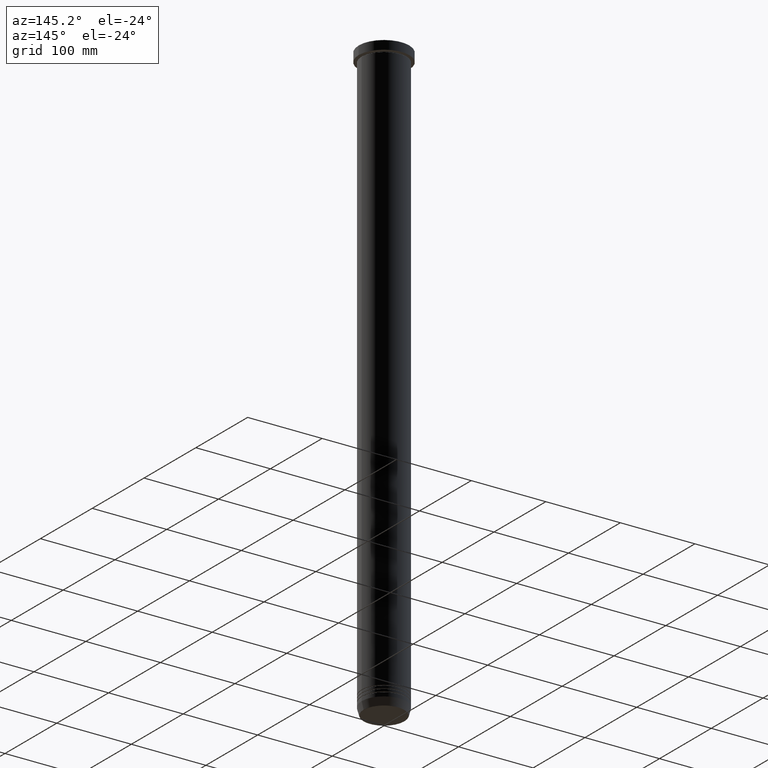
[diagram: clean part render]
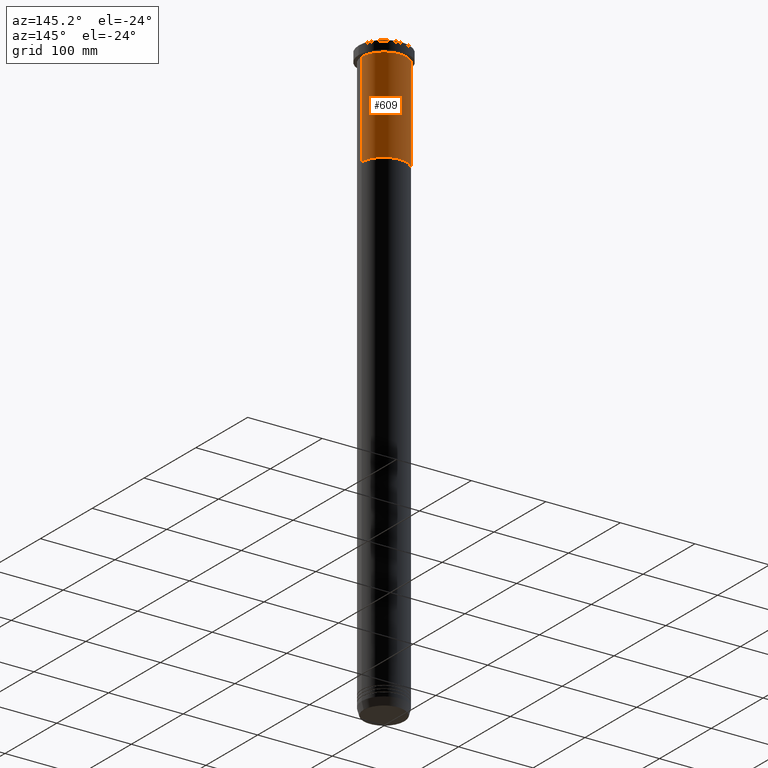
[diagram: same view with one face highlighted and labeled with its STEP entity id]
A machine part, auxiliary view. The second image highlights one B-rep face of the part: STEP entity #609.
In plain terms, the highlighted cylindrical surface (edge-blend (fillet) strip) has radius 30 mm, axis along (-0, -0, 1).
Its self-contained STEP definition (entity closure, byte-faithful):
#18 = EDGE_CURVE ( 'NONE', #29, #691, #153, .T. ) ;
#21 = ORIENTED_EDGE ( 'NONE', *, *, #616, .T. ) ;
#29 = VERTEX_POINT ( 'NONE', #182 ) ;
#30 = LINE ( 'NONE', #850, #189 ) ;
#35 = CARTESIAN_POINT ( 'NONE',  ( -30.00000000000000000, 3.673940397442059178E-15, 0.000000000000000000 ) ) ;
#50 = CIRCLE ( 'NONE', #1055, 30.00000000000000000 ) ;
#65 = CARTESIAN_POINT ( 'NONE',  ( -30.00000000000000000, 3.673940397442059178E-15, -12.99999999999999822 ) ) ;
#153 = CIRCLE ( 'NONE', #319, 30.00000000000000000 ) ;
#166 = EDGE_CURVE ( 'NONE', #29, #417, #30, .T. ) ;
#182 = CARTESIAN_POINT ( 'NONE',  ( 30.00000000000000000, 0.000000000000000000, -140.0000000000000000 ) ) ;
#189 = VECTOR ( 'NONE', #773, 1000.000000000000000 ) ;
#247 = CARTESIAN_POINT ( 'NONE',  ( 30.00000000000000000, 0.000000000000000000, -12.99999999999999822 ) ) ;
#263 = DIRECTION ( 'NONE',  ( 1.000000000000000000, 0.000000000000000000, 0.000000000000000000 ) ) ;
#309 = CARTESIAN_POINT ( 'NONE',  ( -30.00000000000000000, 3.673940397442059178E-15, -140.0000000000000000 ) ) ;
#319 = AXIS2_PLACEMENT_3D ( 'NONE', #487, #990, #576 ) ;
#362 = FACE_OUTER_BOUND ( 'NONE', #1057, .T. ) ;
#417 = VERTEX_POINT ( 'NONE', #247 ) ;
#427 = CARTESIAN_POINT ( 'NONE',  ( 0.000000000000000000, 0.000000000000000000, -12.99999999999999822 ) ) ;
#439 = LINE ( 'NONE', #35, #921 ) ;
#475 = AXIS2_PLACEMENT_3D ( 'NONE', #515, #848, #1018 ) ;
#487 = CARTESIAN_POINT ( 'NONE',  ( 0.000000000000000000, 0.000000000000000000, -140.0000000000000000 ) ) ;
#514 = DIRECTION ( 'NONE',  ( -0.000000000000000000, -0.000000000000000000, 1.000000000000000000 ) ) ;
#515 = CARTESIAN_POINT ( 'NONE',  ( 0.000000000000000000, 0.000000000000000000, 0.000000000000000000 ) ) ;
#576 = DIRECTION ( 'NONE',  ( 1.000000000000000000, 0.000000000000000000, 0.000000000000000000 ) ) ;
#609 = ADVANCED_FACE ( 'NONE', ( #362 ), #925, .T. ) ;
#616 = EDGE_CURVE ( 'NONE', #691, #657, #439, .T. ) ;
#657 = VERTEX_POINT ( 'NONE', #65 ) ;
#690 = DIRECTION ( 'NONE',  ( -0.000000000000000000, -0.000000000000000000, 1.000000000000000000 ) ) ;
#691 = VERTEX_POINT ( 'NONE', #309 ) ;
#773 = DIRECTION ( 'NONE',  ( -0.000000000000000000, -0.000000000000000000, 1.000000000000000000 ) ) ;
#848 = DIRECTION ( 'NONE',  ( -0.000000000000000000, -0.000000000000000000, 1.000000000000000000 ) ) ;
#850 = CARTESIAN_POINT ( 'NONE',  ( 30.00000000000000000, 0.000000000000000000, 0.000000000000000000 ) ) ;
#894 = ORIENTED_EDGE ( 'NONE', *, *, #166, .F. ) ;
#908 = ORIENTED_EDGE ( 'NONE', *, *, #18, .T. ) ;
#921 = VECTOR ( 'NONE', #690, 1000.000000000000000 ) ;
#923 = ORIENTED_EDGE ( 'NONE', *, *, #1031, .F. ) ;
#925 = CYLINDRICAL_SURFACE ( 'NONE', #475, 30.00000000000000000 ) ;
#990 = DIRECTION ( 'NONE',  ( -0.000000000000000000, -0.000000000000000000, 1.000000000000000000 ) ) ;
#1018 = DIRECTION ( 'NONE',  ( 1.000000000000000000, 0.000000000000000000, 0.000000000000000000 ) ) ;
#1031 = EDGE_CURVE ( 'NONE', #417, #657, #50, .T. ) ;
#1055 = AXIS2_PLACEMENT_3D ( 'NONE', #427, #514, #263 ) ;
#1057 = EDGE_LOOP ( 'NONE', ( #908, #21, #923, #894 ) ) ;